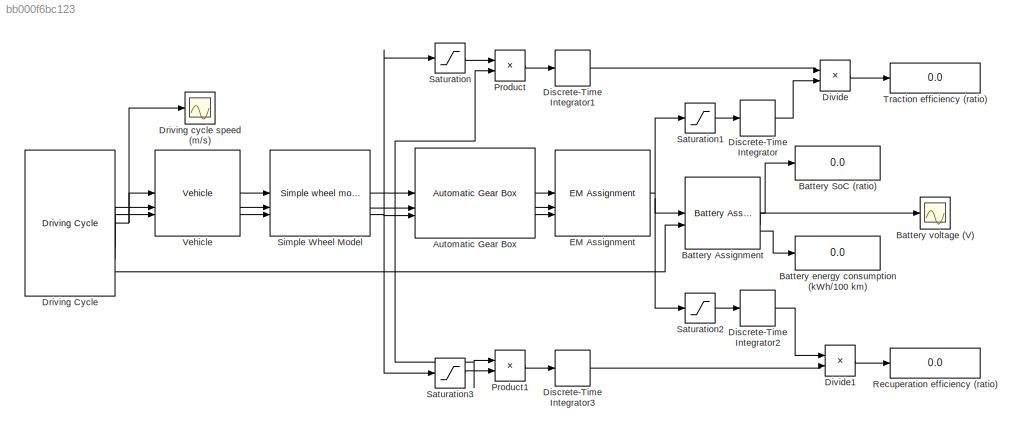
MODEL slx_bb000f6bc123
KIND model
CONFIG AbsTol = auto
CONFIG EnableMultiTasking = off
CONFIG FixedStep = auto
CONFIG MaxStep = auto
CONFIG MinStep = auto
CONFIG RelTol = 1e-3
CONFIG SampleTimeConstraint = Unconstrained
CONFIG SolverName = VariableStepAuto
CONFIG StartTime = 0.0
CONFIG StopTime = 6670
BLOCK [Reference] Automatic Gear Box   REF=qss_tb_library/Gear System/Automatic Gear Box  (lib defined in mdl_a75e96b0ff2a, mdl_aad2a3137e65)
  SourceBlock = qss_tb_library/Gear System/Automatic Gear Box
  SourceType = Automatic Gear Box
  Tag = transmission
BLOCK [Reference] Battery Assignment   REF=qss_tb_library/Energy Buffer/Battery Assignment  (lib defined in mdl_a75e96b0ff2a, mdl_aad2a3137e65)
  SourceBlock = qss_tb_library/Energy Buffer/Battery Assignment
  SourceType = Battery
  Tag = battery
BLOCK [Display] Battery SoC (ratio)
  Decimation = 1
BLOCK [Display] Battery energy consumption (kWh//100 km)
  Decimation = 1
BLOCK [Scope] Battery voltage (V)
  Floating = off
  NumInputPorts = 1
  ScopeSpecificationString = Simulink.scopes.TimeScopeBlockCfg('CurrentConfiguration', extmgr.ConfigurationSet(extmgr.Configuration('Core','General UI',true),extmgr.Configuration('Core','Source UI',true),extmgr.Configuration('Sources','WiredSimulink',true,'DataLoggingVariableName','ScopeData2'),extmgr.Configuration('Visuals','Time Domain',true,'SerializedDisplays',{struct('MinYLimReal','857.7776','MaxYLimReal','864.36222','YL...<+1398ch>
BLOCK [DiscreteIntegrator] Discrete-Time Integrator
  ICPrevOutput = DiscIntNeverNeededParam
  ICPrevScaledInput = DiscIntNeverNeededParam
  InitialConditionSetting = Auto
  SampleTime = -1
BLOCK [DiscreteIntegrator] Discrete-Time Integrator1
  ICPrevOutput = DiscIntNeverNeededParam
  ICPrevScaledInput = DiscIntNeverNeededParam
  InitialConditionSetting = Auto
  SampleTime = -1
BLOCK [DiscreteIntegrator] Discrete-Time Integrator2
  ICPrevOutput = DiscIntNeverNeededParam
  ICPrevScaledInput = DiscIntNeverNeededParam
  InitialConditionSetting = Auto
  SampleTime = -1
BLOCK [DiscreteIntegrator] Discrete-Time Integrator3
  ICPrevOutput = DiscIntNeverNeededParam
  ICPrevScaledInput = DiscIntNeverNeededParam
  InitialConditionSetting = Auto
  SampleTime = -1
BLOCK [Product] Divide
  Inputs = */
BLOCK [Product] Divide1
  Inputs = */
BLOCK [Reference] Driving Cycle   REF=qss_tb_library/Driving Cycle/Driving Cycle  (lib defined in mdl_a75e96b0ff2a, mdl_aad2a3137e65)
  SourceBlock = qss_tb_library/Driving Cycle/Driving Cycle
  SourceType = Driving Cycle
  Tag = cycle
BLOCK [Scope] Driving cycle speed (m//s)
  Floating = off
  NumInputPorts = 1
  ScopeSpecificationString = Simulink.scopes.TimeScopeBlockCfg('CurrentConfiguration', extmgr.ConfigurationSet(extmgr.Configuration('Core','General UI',true),extmgr.Configuration('Core','Source UI',true),extmgr.Configuration('Sources','WiredSimulink',true),extmgr.Configuration('Visuals','Time Domain',true,'SerializedDisplays',{struct('MinYLimReal','25.78962','MaxYLimReal','26.96081','YLabelReal','','MinYLimMag','25.78962','Ma...<+1646ch>
BLOCK [Reference] EM Assignment   REF=qss_tb_library/Energy Converter/EM Assignment  (lib defined in mdl_a75e96b0ff2a, mdl_aad2a3137e65)
  SourceBlock = qss_tb_library/Energy Converter/EM Assignment
  SourceType = Electric Motor
BLOCK [Product] Product
BLOCK [Product] Product1
BLOCK [Display] Recuperation efficiency (ratio)
  Decimation = 1
BLOCK [Saturate] Saturation
  LowerLimit = 0
  UpperLimit = inf
BLOCK [Saturate] Saturation1
  LowerLimit = 0
  UpperLimit = inf
BLOCK [Saturate] Saturation2
  LowerLimit = -1000000
  UpperLimit = 0
BLOCK [Saturate] Saturation3
  LowerLimit = -1000000
  UpperLimit = 0
BLOCK [Reference] Simple Wheel Model   REF=qss_tb_library/Vehicle/Simple wheel model  (lib defined in mdl_a75e96b0ff2a, mdl_aad2a3137e65)
  SourceBlock = qss_tb_library/Vehicle/Simple wheel model
  SourceType = Simple wheel model
  Tag = simple transmission
BLOCK [Display] Traction efficiency (ratio)
  Decimation = 1
BLOCK [Reference] Vehicle   REF=qss_tb_library/Vehicle/Vehicle  (lib defined in mdl_a75e96b0ff2a, mdl_aad2a3137e65)
  SourceBlock = qss_tb_library/Vehicle/Vehicle
  SourceType = Vehicle
  Tag = vehicle
LINE Automatic Gear Box :1 -> EM Assignment :1
LINE Automatic Gear Box :2 -> EM Assignment :2
LINE Automatic Gear Box :3 -> EM Assignment :3
LINE Battery Assignment :1 -> Battery SoC (ratio):1
LINE Battery Assignment :2 -> Battery voltage (V):1
LINE Battery Assignment :3 -> Battery energy consumption (kWh//100 km):1
LINE Discrete-Time Integrator1:1 -> Divide:1
LINE Discrete-Time Integrator2:1 -> Divide1:1
LINE Discrete-Time Integrator3:1 -> Divide1:2
LINE Discrete-Time Integrator:1 -> Divide:2
LINE Divide1:1 -> Recuperation efficiency (ratio):1
LINE Divide:1 -> Traction efficiency (ratio):1
NET Driving Cycle :1 -> Driving cycle speed (m//s):1, Vehicle :1
LINE Driving Cycle :2 -> Vehicle :2
LINE Driving Cycle :3 -> Vehicle :3
LINE Driving Cycle :5 -> Battery Assignment :2
NET EM Assignment :1 -> Battery Assignment :1, Saturation1:1, Saturation2:1
LINE Product1:1 -> Discrete-Time Integrator3:1
LINE Product:1 -> Discrete-Time Integrator1:1
LINE Saturation1:1 -> Discrete-Time Integrator:1
LINE Saturation2:1 -> Discrete-Time Integrator2:1
LINE Saturation3:1 -> Product1:2
LINE Saturation:1 -> Product:1
NET Simple Wheel Model :1 -> Automatic Gear Box :1, Product1:1, Product:2
LINE Simple Wheel Model :2 -> Automatic Gear Box :2
NET Simple Wheel Model :3 -> Automatic Gear Box :3, Saturation3:1, Saturation:1
LINE Vehicle :1 -> Simple Wheel Model :1
LINE Vehicle :2 -> Simple Wheel Model :2
LINE Vehicle :3 -> Simple Wheel Model :3
note: NET lines group one-source signal fan-out (src -> all destinations, sorted); 1:1 wires keep LINE
